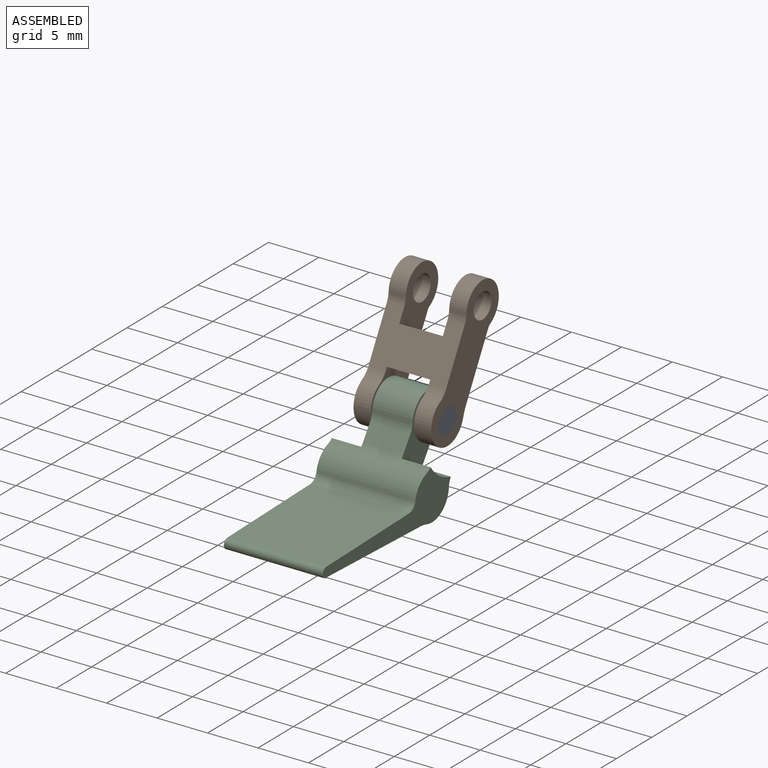
[diagram: assembled view]
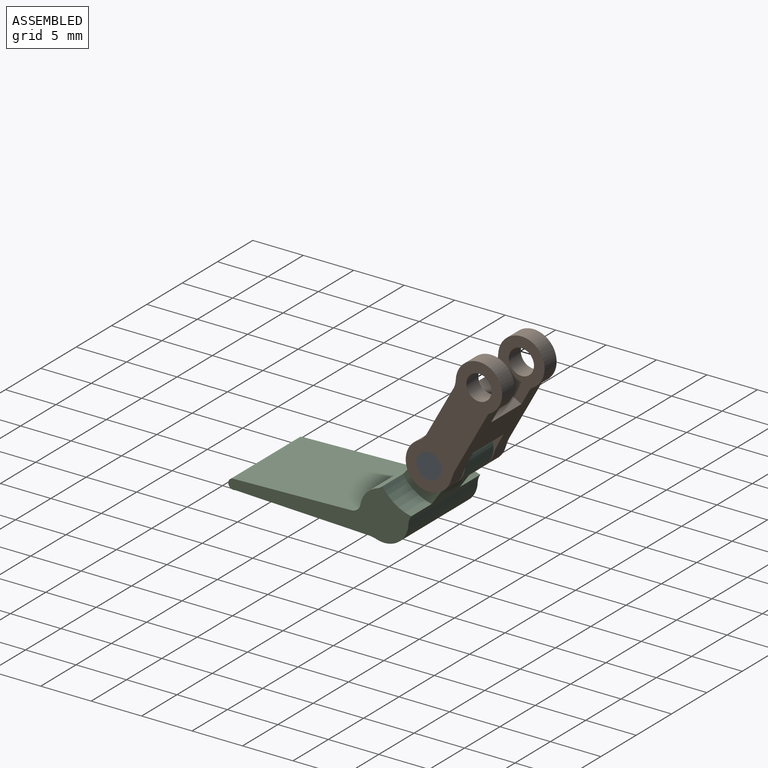
[diagram: assembled view, second angle]
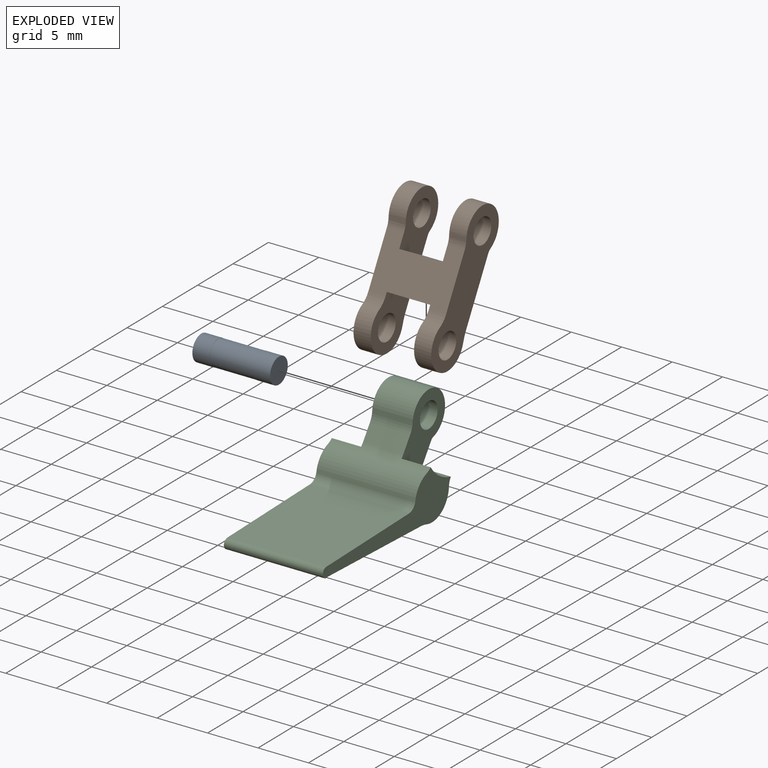
[diagram: exploded view]
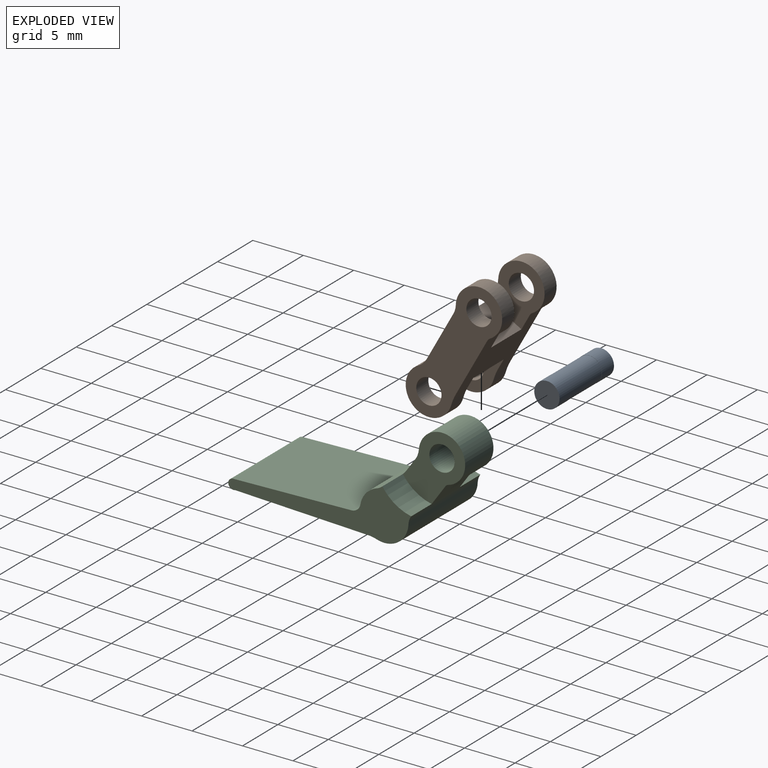
[diagram: exploded view, second angle]
ASSEMBLY  parts=3 mates=2
PART A: 10 faces, bbox 7.7x2.6x2.6 mm
  f0: plane 2.56x2.56mm, normal (1,0,0), area 4.9mm2, adj f1,f2
  f1: cylinder r=1.26mm len=2.36mm, axis (-1,0,0), area 6.7mm2, adj f0,f2,f3
  f2: cylinder r=1.26mm len=2.36mm, axis (-1,0,0), area 6.7mm2, adj f0,f1,f3
  f3: plane 2.56x2.56mm, normal (-1,0,0), area 0.1mm2, adj f1,f2,f4,f5
  f4: cylinder r=1.24mm len=4.3mm, axis (-1,0,0), area 16.8mm2, adj f3,f5,f7
  f5: cylinder r=1.24mm len=4.3mm, axis (-1,0,0), area 16.8mm2, adj f3,f4,f7
  f6: plane 2.56x2.56mm, normal (-1,0,0), area 4.9mm2, adj f8,f9
  f7: plane 2.56x2.56mm, normal (1,0,0), area 0.1mm2, adj f4,f5,f8,f9
  f8: cylinder r=1.26mm len=2.36mm, axis (-1,0,0), area 6.7mm2, adj f6,f7,f9
  f9: cylinder r=1.26mm len=2.36mm, axis (-1,0,0), area 6.7mm2, adj f6,f7,f8
PART B: 30 faces, bbox 9.6x7.7x13 mm
  f0: cylinder r=2.3mm len=4.51mm, axis (0,-1,0), area 15.5mm2, adj f6,f9,f10,f11
  f1: cylinder r=1.25mm len=2.5mm, axis (0,-1,0), area 6.7mm2, adj f2,f9,f11
  f2: cylinder r=1.25mm len=2.5mm, axis (0,-1,0), area 6.7mm2, adj f1,f9,f11
  f3: cylinder r=2.3mm len=4.6mm, axis (0,-1,0), area 16.3mm2, adj f7,f11,f12,f13
  f4: cylinder r=1.25mm len=2.5mm, axis (0,-1,0), area 6.7mm2, adj f5,f11,f13
  f5: cylinder r=1.25mm len=2.5mm, axis (0,-1,0), area 6.7mm2, adj f4,f11,f13
  f6: cylinder r=5.11mm len=1.7mm, axis (0,-1,0), area 2mm2, adj f0,f9,f11,f19
  f7: cylinder r=0.69mm len=1.7mm, axis (0,-1,0), area 0.7mm2, adj f3,f11,f13,f19
  f8: plane 4.3x3.22mm, normal (-0.48,0,-0.87), area 15.8mm2, adj f9,f15,f19,f23
  f9: plane 5.54x5.53mm, normal (0,1,0), area 14.7mm2, adj f0,f1,f2,f6,f8,f10,f19,f23
  f10: cylinder r=2.08mm len=1.7mm, axis (0,-1,0), area 2.1mm2, adj f0,f9,f11,f23
  f11: plane 13.04x9.62mm, normal (0,-1,0), area 44.5mm2, adj f0,f1,f2,f3,f4,f5,f6,f7
  f12: cylinder r=1.86mm len=1.7mm, axis (0,-1,0), area 1.5mm2, adj f3,f11,f13,f23
  f13: plane 6.11x5.55mm, normal (0,1,0), area 16.4mm2, adj f3,f4,f5,f7,f12,f14,f19,f23
  f14: plane 4.3x3.22mm, normal (0.48,0,0.87), area 15.8mm2, adj f13,f16,f19,f23
  f15: plane 5.54x5.53mm, normal (0,-1,0), area 14.7mm2, adj f8,f17,f18,f19,f23,f24,f25,f26
  f16: plane 6.11x5.55mm, normal (0,-1,0), area 16.4mm2, adj f14,f19,f20,f21,f22,f23,f27,f28
  f17: cylinder r=2.3mm len=4.51mm, axis (0,-1,0), area 15.5mm2, adj f15,f18,f24,f29
  f18: cylinder r=5.11mm len=1.7mm, axis (0,-1,0), area 2mm2, adj f15,f17,f19,f29
  f19: plane 7.7x5.65mm, normal (0.87,0,-0.48), area 37.6mm2, adj f6,f7,f8,f9,f11,f13,f14,f15
  f20: cylinder r=0.69mm len=1.7mm, axis (0,-1,0), area 0.7mm2, adj f16,f19,f21,f29
  f21: cylinder r=2.3mm len=4.6mm, axis (0,-1,0), area 16.3mm2, adj f16,f20,f22,f29
  f22: cylinder r=1.86mm len=1.7mm, axis (0,-1,0), area 1.5mm2, adj f16,f21,f23,f29
  f23: plane 7.7x4.74mm, normal (-0.87,0,0.48), area 34mm2, adj f8,f9,f10,f11,f12,f13,f14,f15
  f24: cylinder r=2.08mm len=1.7mm, axis (0,-1,0), area 2.1mm2, adj f15,f17,f23,f29
  f25: cylinder r=1.25mm len=2.5mm, axis (0,-1,0), area 6.7mm2, adj f15,f26,f29
  f26: cylinder r=1.25mm len=2.5mm, axis (0,-1,0), area 6.7mm2, adj f15,f25,f29
  f27: cylinder r=1.25mm len=2.5mm, axis (0,-1,0), area 6.7mm2, adj f16,f28,f29
  f28: cylinder r=1.25mm len=2.5mm, axis (0,-1,0), area 6.7mm2, adj f16,f27,f29
  f29: plane 13.04x9.62mm, normal (0,1,0), area 44.5mm2, adj f17,f18,f19,f20,f21,f22,f23,f24
PART C: 22 faces, bbox 9.8x9.8x21.5 mm
  f0: cylinder r=3.64mm len=9.8mm, axis (0,-1,0), area 10.7mm2, adj f1,f5,f6,f8
  f1: plane 13x9.8mm, normal (1,0,0.04), area 127.4mm2, adj f0,f2,f6,f8
  f2: cylinder r=0.5mm len=9.8mm, axis (0,-1,0), area 17.1mm2, adj f1,f3,f6,f8
  f3: plane 11.77x9.8mm, normal (-1,0,0.03), area 115.4mm2, adj f2,f4,f6,f8
  f4: cylinder r=0.94mm len=9.8mm, axis (0,-1,0), area 11.8mm2, adj f3,f6,f7,f8
  f5: cylinder r=2.4mm len=9.8mm, axis (0,-1,0), area 43.1mm2, adj f0,f6,f8,f9
  f6: plane 18.13x5.02mm, normal (0,1,0), area 35.5mm2, adj f0,f1,f2,f3,f4,f5,f7,f9
  f7: cylinder r=2.4mm len=9.8mm, axis (0,-1,0), area 25.1mm2, adj f4,f6,f8,f13
  f8: plane 18.13x5.02mm, normal (0,-1,0), area 35.5mm2, adj f0,f1,f2,f3,f4,f5,f7,f9
  f9: cylinder r=1.47mm len=9.8mm, axis (0,-1,0), area 8.2mm2, adj f5,f6,f8,f18
  f10: cylinder r=4.5mm len=2.9mm, axis (0,-1,0), area 10.2mm2, adj f6,f11,f13,f18
  f11: plane 6.7x6.21mm, normal (0,1,0), area 19.7mm2, adj f10,f13,f14,f15,f16,f17,f18,f19
  f12: cylinder r=4.5mm len=2.9mm, axis (0,-1,0), area 10.2mm2, adj f8,f13,f18,f21
  f13: cylinder r=1.77mm len=9.8mm, axis (0,-1,0), area 8.4mm2, adj f6,f7,f8,f10,f11,f12,f14,f21
  f14: plane 4x1.37mm, normal (-0.57,0,0.82), area 6.7mm2, adj f11,f13,f15,f21
  f15: cylinder r=1.84mm len=4mm, axis (0,-1,0), area 3.9mm2, adj f11,f14,f16,f21
  f16: cylinder r=2.3mm len=4.59mm, axis (0,-1,0), area 40.2mm2, adj f11,f15,f17,f21
  f17: cylinder r=0.44mm len=4mm, axis (0,-1,0), area 1.2mm2, adj f11,f16,f18,f21
  f18: plane 9.8x1.97mm, normal (0.57,0,-0.82), area 9.7mm2, adj f6,f8,f9,f10,f11,f12,f17,f21
  f19: cylinder r=1.25mm len=4mm, axis (0,-1,0), area 15.7mm2, adj f11,f20,f21
  f20: cylinder r=1.25mm len=4mm, axis (0,-1,0), area 15.7mm2, adj f11,f19,f21
  f21: plane 6.7x6.21mm, normal (0,-1,0), area 19.7mm2, adj f12,f13,f14,f15,f16,f17,f18,f19
PLACE A t=(-4.26,6.37,-8.92)mm fixed
PLACE B rot(axis=(0,0,1),90deg) t=(-1.4,-4.54,-9.28)mm
PLACE C rot(axis=(0.58,0.58,-0.58),120deg) t=(7.35,2.68,2.39)mm
MATE revolute A.f1 <-> C.f16  axis (-1,0,0) through (4.6,6.37,7.44)mm
MATE fastened A.f1 <-> B.f0  axis (-1,0,0) through (5.45,6.37,7.44)mm
